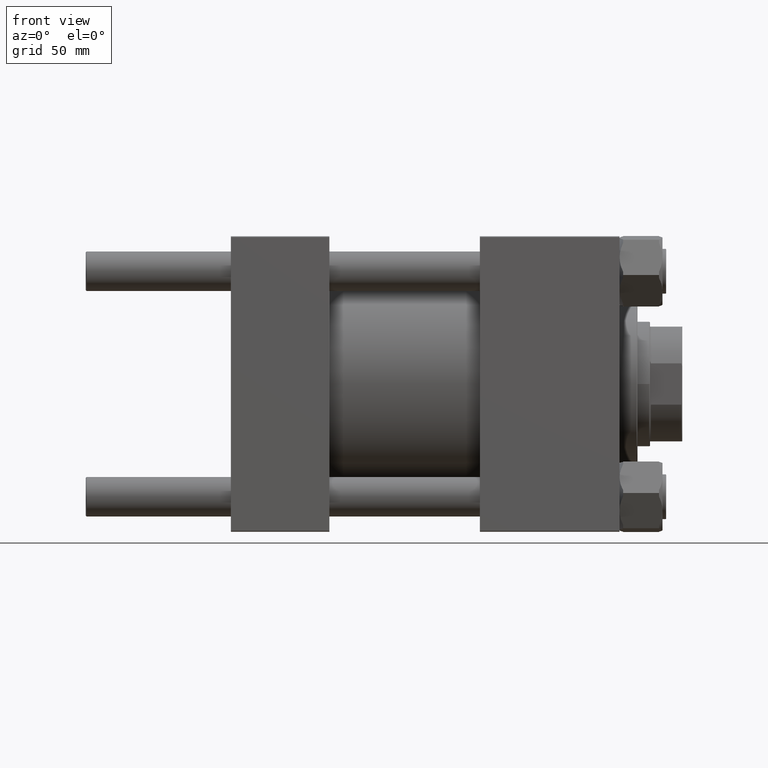
[diagram: clean part render]
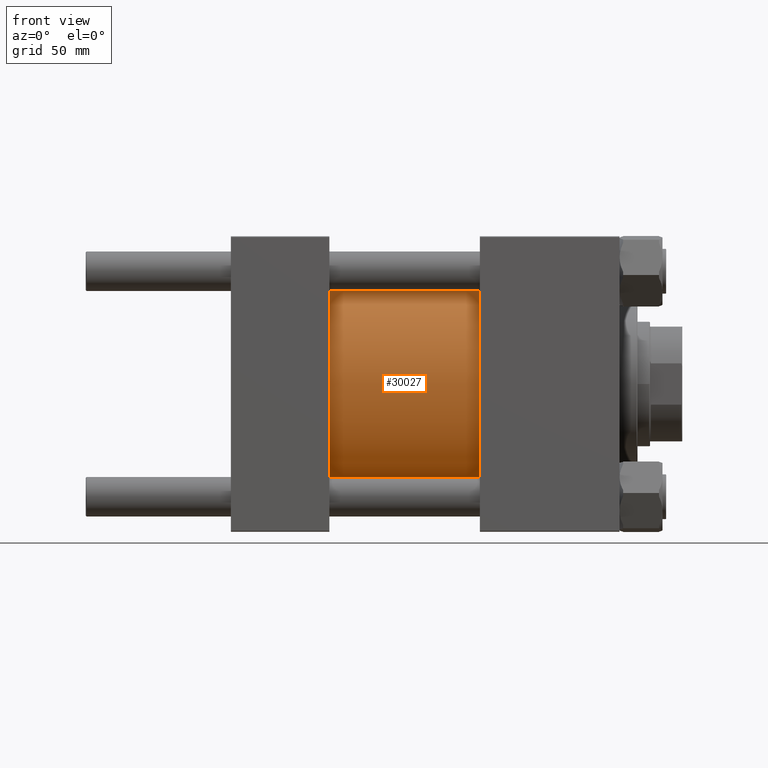
[diagram: same view with one face highlighted and labeled with its STEP entity id]
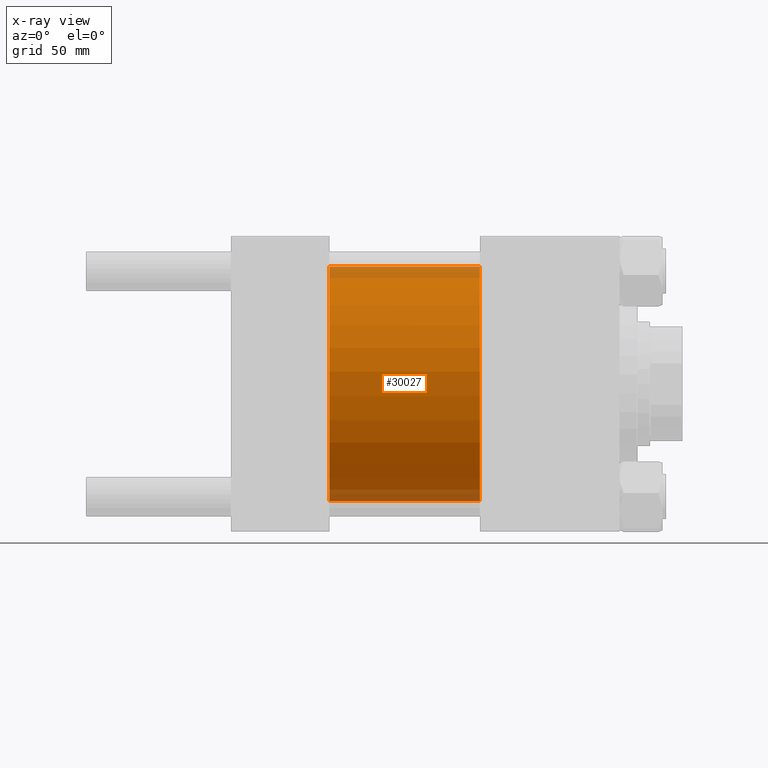
[diagram: x-ray of the same camera — body ghosted, the highlighted face saturated]
A machine part, front view. The second image highlights one B-rep face of the part: STEP entity #30027.
The next image is the same camera in x-ray: the body ghosted, the highlighted face saturated — about 10% of this face is hidden behind the body in this view.
In plain terms, the highlighted cylindrical surface (partial cylindrical patch) has radius 65.5 mm, axis along (-1, -0, -0).
Its self-contained STEP definition (entity closure, byte-faithful):
#1565 = VERTEX_POINT ( 'NONE', #30543 ) ;
#2292 = DIRECTION ( 'NONE',  ( -1.000000000000000000, -0.000000000000000000, -0.000000000000000000 ) ) ;
#2659 = EDGE_LOOP ( 'NONE', ( #23443, #22539, #39660, #28824 ) ) ;
#3656 = DIRECTION ( 'NONE',  ( 0.000000000000000000, 0.000000000000000000, 1.000000000000000000 ) ) ;
#4840 = DIRECTION ( 'NONE',  ( 1.000000000000000000, 0.000000000000000000, 0.000000000000000000 ) ) ;
#4974 = EDGE_CURVE ( 'NONE', #1565, #12162, #22951, .T. ) ;
#6286 = LINE ( 'NONE', #25929, #26580 ) ;
#6290 = EDGE_CURVE ( 'NONE', #37561, #22593, #44979, .T. ) ;
#9308 = DIRECTION ( 'NONE',  ( 1.000000000000000000, -0.000000000000000000, -0.000000000000000000 ) ) ;
#11519 = CARTESIAN_POINT ( 'NONE',  ( 54.99999999999999289, 8.021436534415164826E-15, -65.50000000000001421 ) ) ;
#12162 = VERTEX_POINT ( 'NONE', #50168 ) ;
#13877 = CARTESIAN_POINT ( 'NONE',  ( 54.99999999999999289, 0.000000000000000000, 65.50000000000001421 ) ) ;
#13972 = AXIS2_PLACEMENT_3D ( 'NONE', #32381, #4840, #21157 ) ;
#21146 = EDGE_CURVE ( 'NONE', #12162, #22593, #6286, .T. ) ;
#21157 = DIRECTION ( 'NONE',  ( 0.000000000000000000, 0.000000000000000000, -1.000000000000000000 ) ) ;
#22539 = ORIENTED_EDGE ( 'NONE', *, *, #4974, .F. ) ;
#22593 = VERTEX_POINT ( 'NONE', #11519 ) ;
#22951 = CIRCLE ( 'NONE', #13972, 65.50000000000001421 ) ;
#23306 = CYLINDRICAL_SURFACE ( 'NONE', #40628, 65.50000000000001421 ) ;
#23443 = ORIENTED_EDGE ( 'NONE', *, *, #21146, .F. ) ;
#23805 = CARTESIAN_POINT ( 'NONE',  ( 139.0000000000000000, 0.000000000000000000, 0.000000000000000000 ) ) ;
#25929 = CARTESIAN_POINT ( 'NONE',  ( 139.0000000000000000, 8.021436534415164826E-15, -65.50000000000001421 ) ) ;
#26580 = VECTOR ( 'NONE', #48149, 1000.000000000000000 ) ;
#27868 = FACE_OUTER_BOUND ( 'NONE', #2659, .T. ) ;
#28569 = CARTESIAN_POINT ( 'NONE',  ( 139.0000000000000000, 0.000000000000000000, 65.50000000000001421 ) ) ;
#28824 = ORIENTED_EDGE ( 'NONE', *, *, #6290, .T. ) ;
#30027 = ADVANCED_FACE ( 'NONE', ( #27868 ), #23306, .T. ) ;
#30543 = CARTESIAN_POINT ( 'NONE',  ( 139.0000000000000000, 0.000000000000000000, 65.50000000000001421 ) ) ;
#32381 = CARTESIAN_POINT ( 'NONE',  ( 139.0000000000000000, 0.000000000000000000, 0.000000000000000000 ) ) ;
#37561 = VERTEX_POINT ( 'NONE', #13877 ) ;
#38169 = EDGE_CURVE ( 'NONE', #1565, #37561, #48487, .T. ) ;
#38606 = DIRECTION ( 'NONE',  ( -1.000000000000000000, -0.000000000000000000, -0.000000000000000000 ) ) ;
#39660 = ORIENTED_EDGE ( 'NONE', *, *, #38169, .T. ) ;
#40628 = AXIS2_PLACEMENT_3D ( 'NONE', #23805, #38606, #3656 ) ;
#40920 = VECTOR ( 'NONE', #2292, 1000.000000000000000 ) ;
#41776 = AXIS2_PLACEMENT_3D ( 'NONE', #48362, #9308, #44025 ) ;
#44025 = DIRECTION ( 'NONE',  ( 0.000000000000000000, 0.000000000000000000, 1.000000000000000000 ) ) ;
#44979 = CIRCLE ( 'NONE', #41776, 65.50000000000001421 ) ;
#48149 = DIRECTION ( 'NONE',  ( -1.000000000000000000, -0.000000000000000000, -0.000000000000000000 ) ) ;
#48362 = CARTESIAN_POINT ( 'NONE',  ( 54.99999999999999289, 0.000000000000000000, 0.000000000000000000 ) ) ;
#48487 = LINE ( 'NONE', #28569, #40920 ) ;
#50168 = CARTESIAN_POINT ( 'NONE',  ( 139.0000000000000000, 8.021436534415164826E-15, -65.50000000000001421 ) ) ;